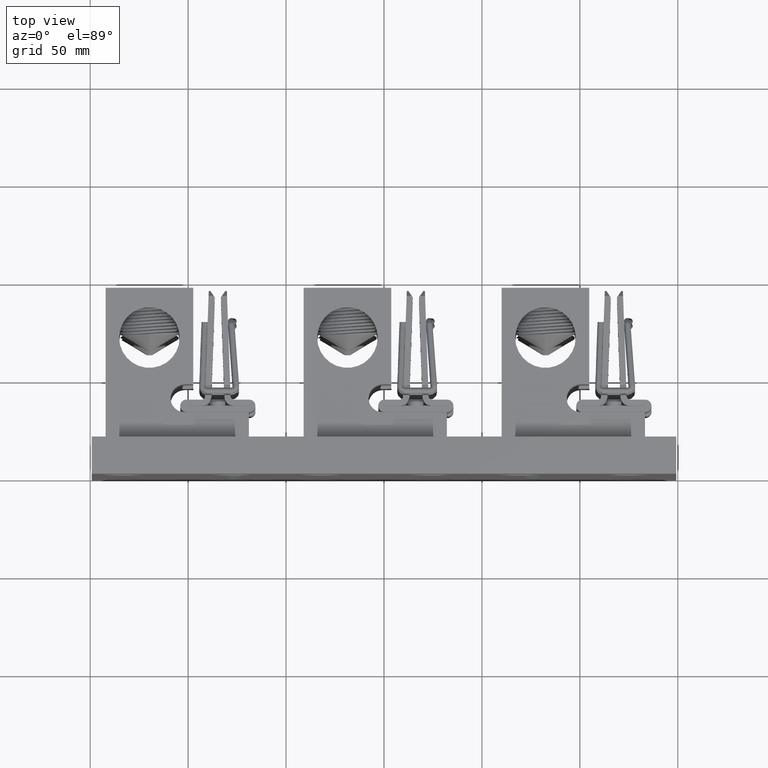
[diagram: clean part render]
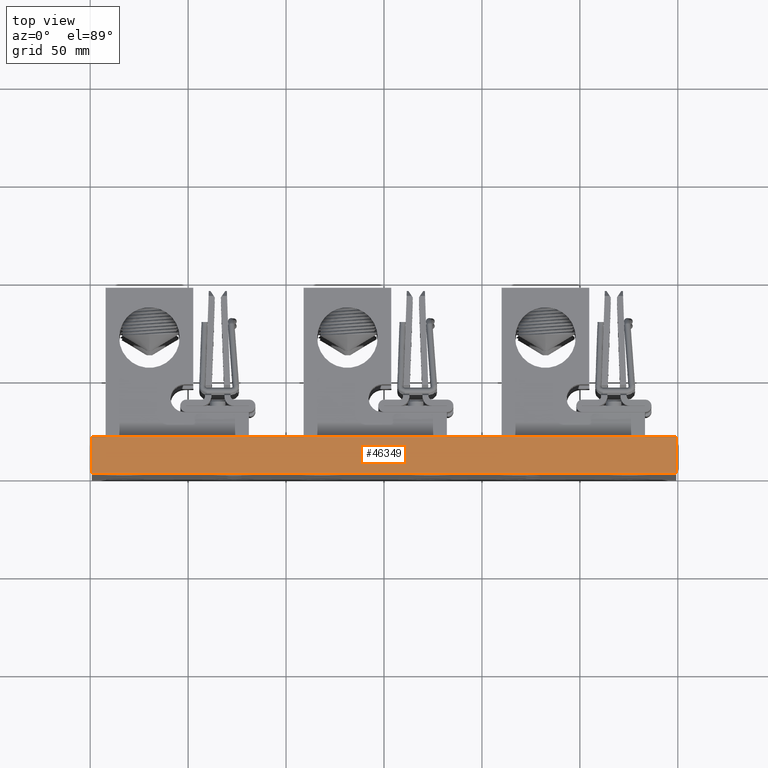
[diagram: same view with one face highlighted and labeled with its STEP entity id]
A machine part, top view. The second image highlights one B-rep face of the part: STEP entity #46349.
In plain terms, the highlighted planar face has unit normal (-0, 0, -1).
Its self-contained STEP definition (entity closure, byte-faithful):
#1268 = VECTOR ( 'NONE', #6864, 39.37007874015748100 ) ;
#2116 = DIRECTION ( 'NONE',  ( 1.000000000000000000, -0.0000000000000000000, -1.394986209530687600E-016 ) ) ;
#5760 = DIRECTION ( 'NONE',  ( -0.0000000000000000000, -1.000000000000000000, -0.0000000000000000000 ) ) ;
#5773 = CARTESIAN_POINT ( 'NONE',  ( 5.874999999999999100, 0.7500000000000001100, 3.999999999999997800 ) ) ;
#6864 = DIRECTION ( 'NONE',  ( 1.000000000000000000, -0.0000000000000000000, -1.394986209530687600E-016 ) ) ;
#8392 = DIRECTION ( 'NONE',  ( -1.394986209530687900E-016, 0.0000000000000000000, -1.000000000000000000 ) ) ;
#12606 = CARTESIAN_POINT ( 'NONE',  ( 5.874999999999999100, 0.7500000000000001100, 3.999999999999997800 ) ) ;
#12660 = VECTOR ( 'NONE', #2116, 39.37007874015748100 ) ;
#13021 = CARTESIAN_POINT ( 'NONE',  ( 5.874999999999999100, 0.0000000000000000000, 3.999999999999997800 ) ) ;
#14575 = PLANE ( 'NONE',  #28172 ) ;
#16705 = ORIENTED_EDGE ( 'NONE', *, *, #75629, .F. ) ;
#22721 = EDGE_CURVE ( 'NONE', #60472, #30561, #29731, .T. ) ;
#25145 = ORIENTED_EDGE ( 'NONE', *, *, #22721, .T. ) ;
#28172 = AXIS2_PLACEMENT_3D ( 'NONE', #46729, #8392, #53202 ) ;
#29731 = LINE ( 'NONE', #40562, #12660 ) ;
#30561 = VERTEX_POINT ( 'NONE', #13021 ) ;
#31296 = CARTESIAN_POINT ( 'NONE',  ( -5.875000000000000900, 0.7500000000000001100, 3.999999999999999600 ) ) ;
#34478 = CARTESIAN_POINT ( 'NONE',  ( -5.875000000000000900, 0.0000000000000000000, 3.999999999999999600 ) ) ;
#37811 = ORIENTED_EDGE ( 'NONE', *, *, #73301, .T. ) ;
#40562 = CARTESIAN_POINT ( 'NONE',  ( 5.874999999999999100, 0.0000000000000000000, 3.999999999999997800 ) ) ;
#40973 = VECTOR ( 'NONE', #5760, 39.37007874015748100 ) ;
#44089 = EDGE_LOOP ( 'NONE', ( #25145, #16705, #80965, #37811 ) ) ;
#46349 = ADVANCED_FACE ( 'NONE', ( #61316 ), #14575, .F. ) ;
#46729 = CARTESIAN_POINT ( 'NONE',  ( 5.874999999999999100, 0.7500000000000001100, 3.999999999999997800 ) ) ;
#47261 = CARTESIAN_POINT ( 'NONE',  ( -5.875000000000000900, 0.7500000000000001100, 3.999999999999999600 ) ) ;
#50577 = DIRECTION ( 'NONE',  ( -0.0000000000000000000, -1.000000000000000000, -0.0000000000000000000 ) ) ;
#51658 = CARTESIAN_POINT ( 'NONE',  ( 5.874999999999999100, 0.7500000000000001100, 3.999999999999997800 ) ) ;
#53202 = DIRECTION ( 'NONE',  ( -1.000000000000000000, 0.0000000000000000000, 1.394986209530687900E-016 ) ) ;
#56751 = VERTEX_POINT ( 'NONE', #12606 ) ;
#57960 = LINE ( 'NONE', #31296, #40973 ) ;
#58568 = VERTEX_POINT ( 'NONE', #47261 ) ;
#60472 = VERTEX_POINT ( 'NONE', #34478 ) ;
#61316 = FACE_OUTER_BOUND ( 'NONE', #44089, .T. ) ;
#62385 = LINE ( 'NONE', #5773, #77384 ) ;
#67456 = LINE ( 'NONE', #51658, #1268 ) ;
#71775 = EDGE_CURVE ( 'NONE', #58568, #56751, #67456, .T. ) ;
#73301 = EDGE_CURVE ( 'NONE', #58568, #60472, #57960, .T. ) ;
#75629 = EDGE_CURVE ( 'NONE', #56751, #30561, #62385, .T. ) ;
#77384 = VECTOR ( 'NONE', #50577, 39.37007874015748100 ) ;
#80965 = ORIENTED_EDGE ( 'NONE', *, *, #71775, .F. ) ;